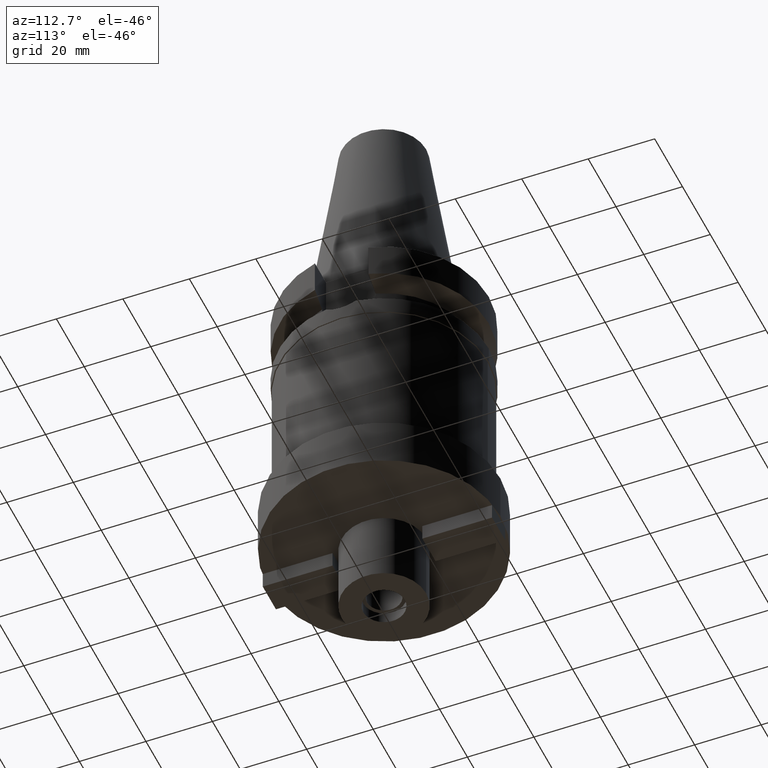
[diagram: clean part render]
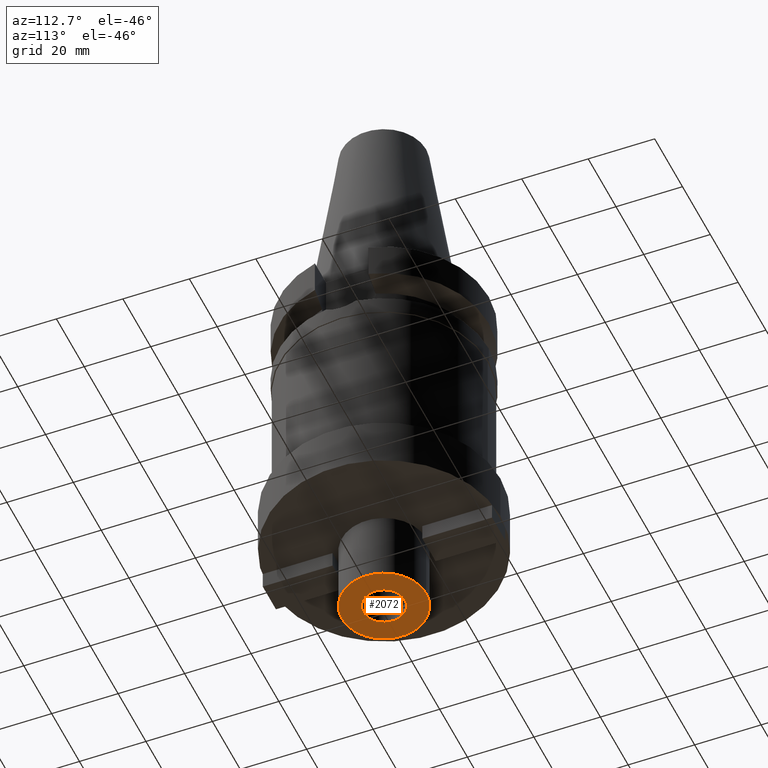
[diagram: same view with one face highlighted and labeled with its STEP entity id]
A machine part, auxiliary view. The second image highlights one B-rep face of the part: STEP entity #2072.
In plain terms, the highlighted planar face has unit normal (0, 0, -1).
Its self-contained STEP definition (entity closure, byte-faithful):
#823=CARTESIAN_POINT('',(0.E0,2.134191976874E-14,-1.12E2));
#824=DIRECTION('',(0.E0,0.E0,1.E0));
#825=DIRECTION('',(0.E0,-1.E0,0.E0));
#826=AXIS2_PLACEMENT_3D('',#823,#824,#825);
#831=CARTESIAN_POINT('',(0.E0,2.134191976874E-14,-1.12E2));
#832=DIRECTION('',(0.E0,0.E0,1.E0));
#833=DIRECTION('',(0.E0,1.E0,0.E0));
#834=AXIS2_PLACEMENT_3D('',#831,#832,#833);
#839=CARTESIAN_POINT('',(0.E0,2.134191976874E-14,-1.12E2));
#840=DIRECTION('',(0.E0,0.E0,-1.E0));
#841=DIRECTION('',(0.E0,-1.E0,0.E0));
#842=AXIS2_PLACEMENT_3D('',#839,#840,#841);
#847=CARTESIAN_POINT('',(0.E0,2.134191976874E-14,-1.12E2));
#848=DIRECTION('',(0.E0,0.E0,-1.E0));
#849=DIRECTION('',(0.E0,1.E0,0.E0));
#850=AXIS2_PLACEMENT_3D('',#847,#848,#849);
#1301=CARTESIAN_POINT('',(0.E0,6.25E0,-1.12E2));
#1302=VERTEX_POINT('',#1301);
#1303=CARTESIAN_POINT('',(0.E0,-6.25E0,-1.12E2));
#1304=VERTEX_POINT('',#1303);
#1305=CARTESIAN_POINT('',(0.E0,-1.27E1,-1.12E2));
#1306=CARTESIAN_POINT('',(0.E0,1.27E1,-1.12E2));
#1307=VERTEX_POINT('',#1305);
#1308=VERTEX_POINT('',#1306);
#2057=CARTESIAN_POINT('',(0.E0,0.E0,-1.12E2));
#2058=DIRECTION('',(0.E0,0.E0,-1.E0));
#2059=DIRECTION('',(0.E0,-1.E0,0.E0));
#2060=AXIS2_PLACEMENT_3D('',#2057,#2058,#2059);
#2061=PLANE('',#2060);
#2062=ORIENTED_EDGE('',*,*,#2050,.T.);
#2063=ORIENTED_EDGE('',*,*,#2039,.T.);
#2064=EDGE_LOOP('',(#2062,#2063));
#2065=FACE_OUTER_BOUND('',#2064,.F.);
#2067=ORIENTED_EDGE('',*,*,#2066,.T.);
#2069=ORIENTED_EDGE('',*,*,#2068,.T.);
#2070=EDGE_LOOP('',(#2067,#2069));
#2071=FACE_BOUND('',#2070,.F.);
#827=CIRCLE('',#826,1.27E1);
#835=CIRCLE('',#834,1.27E1);
#843=CIRCLE('',#842,6.25E0);
#851=CIRCLE('',#850,6.25E0);
#2039=EDGE_CURVE('',#1308,#1307,#835,.T.);
#2050=EDGE_CURVE('',#1307,#1308,#827,.T.);
#2066=EDGE_CURVE('',#1304,#1302,#843,.T.);
#2068=EDGE_CURVE('',#1302,#1304,#851,.T.);
#2072=ADVANCED_FACE('',(#2065,#2071),#2061,.T.);